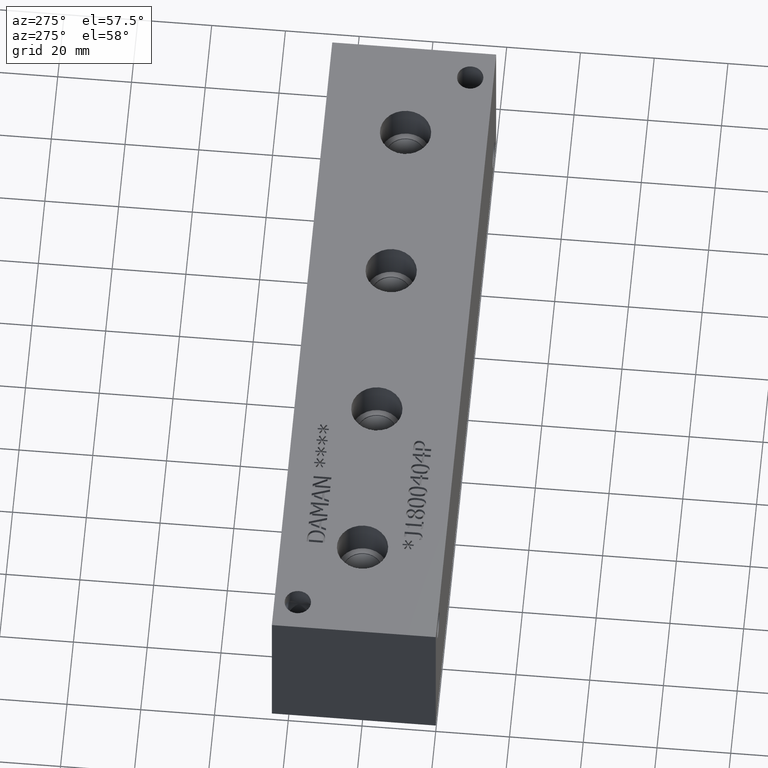
[diagram: clean part render]
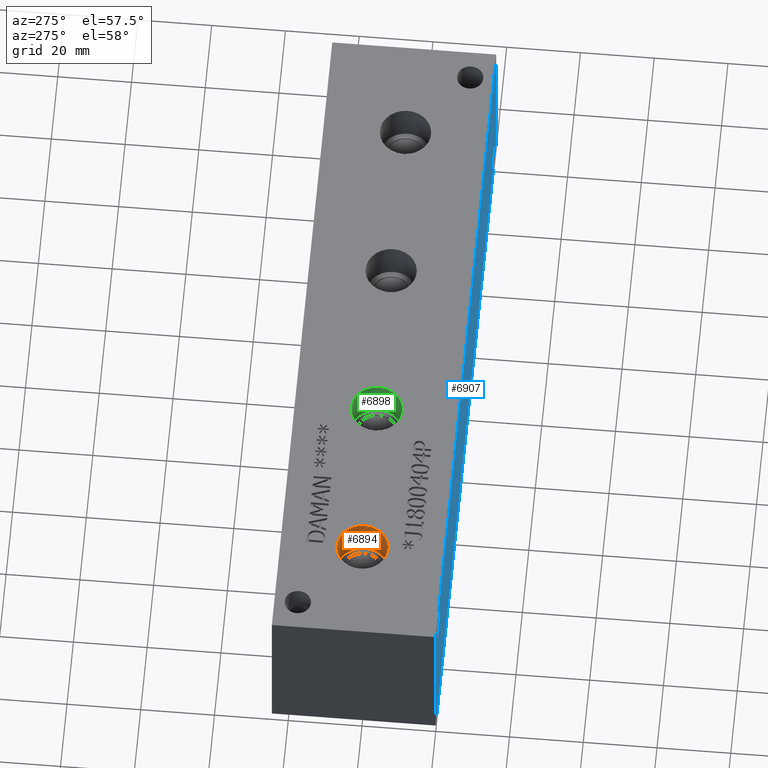
[diagram: same view with three faces highlighted in distinct colors, each labeled with its STEP entity id]
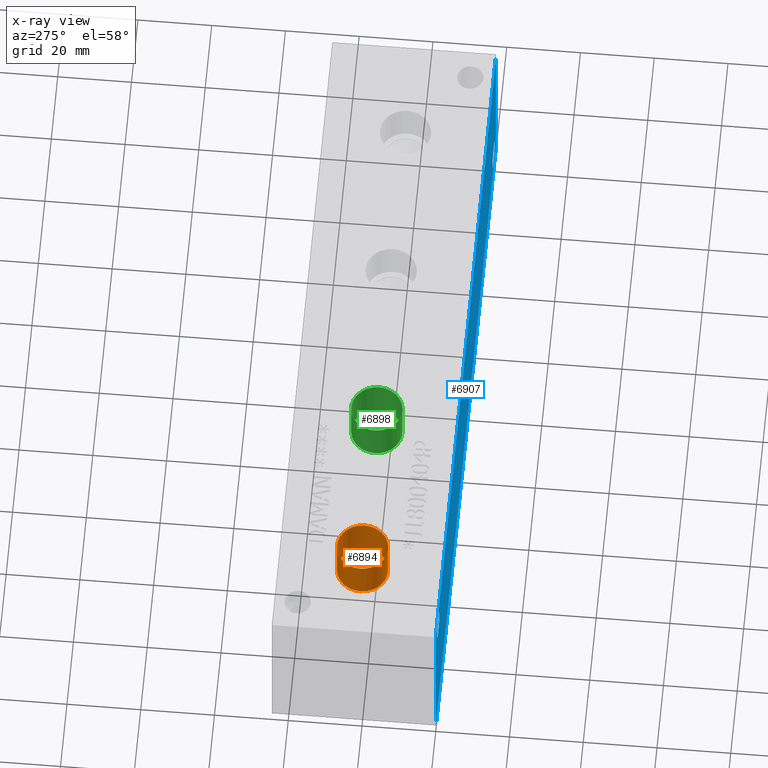
[diagram: x-ray of the same camera — body ghosted, the three highlighted faces saturated]
A machine part, auxiliary view with three faces highlighted in distinct colors.
The next image is the same camera in x-ray (body ghosted, the three faces saturated) — at least one of them is partly hidden behind the body in this view.
Their STEP definitions:

[orange] entity #6894 — the highlighted cylindrical surface (bore or boss wall) has radius 6.9342 mm, axis along (0, 0, 1).
#40=CYLINDRICAL_SURFACE('',#7246,6.9342);
#58=CIRCLE('',#7012,6.9342);
#59=CIRCLE('',#7013,6.9342);
#109=CIRCLE('',#7243,6.9342);
#110=CIRCLE('',#7244,6.9342);
#749=FACE_OUTER_BOUND('',#1140,.T.);
#1140=EDGE_LOOP('',(#6105,#6106,#6107,#6108,#6109,#6110));
#1861=LINE('',#11546,#2570);
#2570=VECTOR('',#8613,6.9342);
#3032=VERTEX_POINT('',#10456);
#3033=VERTEX_POINT('',#10457);
#3355=VERTEX_POINT('',#11539);
#3356=VERTEX_POINT('',#11540);
#3808=EDGE_CURVE('',#3032,#3033,#58,.T.);
#3809=EDGE_CURVE('',#3033,#3032,#59,.T.);
#4284=EDGE_CURVE('',#3355,#3356,#109,.T.);
#4285=EDGE_CURVE('',#3356,#3355,#110,.T.);
#4287=EDGE_CURVE('',#3033,#3356,#1861,.T.);
#6105=ORIENTED_EDGE('',*,*,#3808,.F.);
#6106=ORIENTED_EDGE('',*,*,#3809,.F.);
#6107=ORIENTED_EDGE('',*,*,#4287,.T.);
#6108=ORIENTED_EDGE('',*,*,#4284,.F.);
#6109=ORIENTED_EDGE('',*,*,#4285,.F.);
#6110=ORIENTED_EDGE('',*,*,#4287,.F.);
#6894=ADVANCED_FACE('',(#749),#40,.F.);
#7012=AXIS2_PLACEMENT_3D('',#10458,#7742,#7743);
#7013=AXIS2_PLACEMENT_3D('',#10459,#7744,#7745);
#7243=AXIS2_PLACEMENT_3D('',#11541,#8605,#8606);
#7244=AXIS2_PLACEMENT_3D('',#11542,#8607,#8608);
#7246=AXIS2_PLACEMENT_3D('',#11545,#8611,#8612);
#7742=DIRECTION('center_axis',(0.,0.,-1.));
#7743=DIRECTION('ref_axis',(1.,0.,0.));
#7744=DIRECTION('center_axis',(0.,0.,-1.));
#7745=DIRECTION('ref_axis',(1.,0.,0.));
#8605=DIRECTION('center_axis',(0.,0.,1.));
#8606=DIRECTION('ref_axis',(1.,0.,0.));
#8607=DIRECTION('center_axis',(0.,0.,1.));
#8608=DIRECTION('ref_axis',(1.,0.,0.));
#8611=DIRECTION('center_axis',(0.,0.,1.));
#8612=DIRECTION('ref_axis',(1.,0.,0.));
#8613=DIRECTION('',(0.,0.,-1.));
#10456=CARTESIAN_POINT('',(33.909,22.225,44.45));
#10457=CARTESIAN_POINT('',(20.0406,22.225,44.45));
#10458=CARTESIAN_POINT('Origin',(26.9748,22.225,44.45));
#10459=CARTESIAN_POINT('Origin',(26.9748,22.225,44.45));
#11539=CARTESIAN_POINT('',(33.909,22.225,33.0454));
#11540=CARTESIAN_POINT('',(20.0406,22.225,33.0454));
#11541=CARTESIAN_POINT('Origin',(26.9748,22.225,33.0454));
#11542=CARTESIAN_POINT('Origin',(26.9748,22.225,33.0454));
#11545=CARTESIAN_POINT('Origin',(26.9748,22.225,38.7477));
#11546=CARTESIAN_POINT('',(20.0406,22.225,38.7477));

[blue] entity #6907 — the highlighted planar face has unit normal (0, -1, 0).
#94=CIRCLE('',#7207,3.5687);
#95=CIRCLE('',#7208,3.5687);
#97=CIRCLE('',#7216,3.5687);
#98=CIRCLE('',#7217,3.5687);
#168=FACE_BOUND('',#1158,.T.);
#169=FACE_BOUND('',#1159,.T.);
#413=PLANE('',#7269);
#762=FACE_OUTER_BOUND('',#1157,.T.);
#1157=EDGE_LOOP('',(#6166,#6167,#6168,#6169));
#1158=EDGE_LOOP('',(#6170,#6171));
#1159=EDGE_LOOP('',(#6172,#6173));
#1456=LINE('',#10442,#2165);
#1870=LINE('',#11589,#2579);
#1875=LINE('',#11598,#2584);
#1876=LINE('',#11600,#2585);
#2165=VECTOR('',#7730,10.);
#2579=VECTOR('',#8662,10.);
#2584=VECTOR('',#8671,10.);
#2585=VECTOR('',#8674,10.);
#3024=VERTEX_POINT('',#10440);
#3025=VERTEX_POINT('',#10441);
#3334=VERTEX_POINT('',#11470);
#3335=VERTEX_POINT('',#11471);
#3339=VERTEX_POINT('',#11486);
#3340=VERTEX_POINT('',#11487);
#3371=VERTEX_POINT('',#11587);
#3373=VERTEX_POINT('',#11596);
#3800=EDGE_CURVE('',#3024,#3025,#1456,.T.);
#4249=EDGE_CURVE('',#3334,#3335,#94,.T.);
#4250=EDGE_CURVE('',#3335,#3334,#95,.T.);
#4258=EDGE_CURVE('',#3339,#3340,#97,.T.);
#4259=EDGE_CURVE('',#3340,#3339,#98,.T.);
#4306=EDGE_CURVE('',#3371,#3024,#1870,.T.);
#4311=EDGE_CURVE('',#3373,#3025,#1875,.T.);
#4312=EDGE_CURVE('',#3371,#3373,#1876,.T.);
#6166=ORIENTED_EDGE('',*,*,#4312,.T.);
#6167=ORIENTED_EDGE('',*,*,#4311,.T.);
#6168=ORIENTED_EDGE('',*,*,#3800,.F.);
#6169=ORIENTED_EDGE('',*,*,#4306,.F.);
#6170=ORIENTED_EDGE('',*,*,#4249,.T.);
#6171=ORIENTED_EDGE('',*,*,#4250,.T.);
#6172=ORIENTED_EDGE('',*,*,#4258,.T.);
#6173=ORIENTED_EDGE('',*,*,#4259,.T.);
#6907=ADVANCED_FACE('',(#762,#168,#169),#413,.T.);
#7207=AXIS2_PLACEMENT_3D('',#11472,#8521,#8522);
#7208=AXIS2_PLACEMENT_3D('',#11473,#8523,#8524);
#7216=AXIS2_PLACEMENT_3D('',#11488,#8541,#8542);
#7217=AXIS2_PLACEMENT_3D('',#11489,#8543,#8544);
#7269=AXIS2_PLACEMENT_3D('',#11599,#8672,#8673);
#7730=DIRECTION('',(1.,0.,0.));
#8521=DIRECTION('center_axis',(0.,1.,0.));
#8522=DIRECTION('ref_axis',(1.,0.,0.));
#8523=DIRECTION('center_axis',(0.,1.,0.));
#8524=DIRECTION('ref_axis',(1.,0.,0.));
#8541=DIRECTION('center_axis',(0.,1.,0.));
#8542=DIRECTION('ref_axis',(1.,0.,0.));
#8543=DIRECTION('center_axis',(0.,1.,0.));
#8544=DIRECTION('ref_axis',(1.,0.,0.));
#8662=DIRECTION('',(0.,0.,1.));
#8671=DIRECTION('',(0.,0.,1.));
#8672=DIRECTION('center_axis',(0.,-1.,0.));
#8673=DIRECTION('ref_axis',(1.,0.,0.));
#8674=DIRECTION('',(1.,0.,0.));
#10440=CARTESIAN_POINT('',(0.,0.,44.45));
#10441=CARTESIAN_POINT('',(187.325,0.,44.45));
#10442=CARTESIAN_POINT('',(0.,0.,44.45));
#11470=CARTESIAN_POINT('',(11.4935,0.,38.1));
#11471=CARTESIAN_POINT('',(4.3561,0.,38.1));
#11472=CARTESIAN_POINT('Origin',(7.9248,0.,38.1));
#11473=CARTESIAN_POINT('Origin',(7.9248,0.,38.1));
#11486=CARTESIAN_POINT('',(182.9435,0.,6.35));
#11487=CARTESIAN_POINT('',(175.8061,0.,6.35));
#11488=CARTESIAN_POINT('Origin',(179.3748,0.,6.35));
#11489=CARTESIAN_POINT('Origin',(179.3748,0.,6.35));
#11587=CARTESIAN_POINT('',(0.,0.,0.));
#11589=CARTESIAN_POINT('',(0.,0.,0.));
#11596=CARTESIAN_POINT('',(187.325,0.,0.));
#11598=CARTESIAN_POINT('',(187.325,0.,0.));
#11599=CARTESIAN_POINT('Origin',(0.,0.,0.));
#11600=CARTESIAN_POINT('',(0.,0.,0.));

[green] entity #6898 — the highlighted cylindrical surface (bore or boss wall) has radius 6.9342 mm, axis along (0, 0, 1).
#42=CYLINDRICAL_SURFACE('',#7255,6.9342);
#56=CIRCLE('',#7010,6.9342);
#57=CIRCLE('',#7011,6.9342);
#114=CIRCLE('',#7252,6.9342);
#115=CIRCLE('',#7253,6.9342);
#753=FACE_OUTER_BOUND('',#1145,.T.);
#1145=EDGE_LOOP('',(#6123,#6124,#6125,#6126,#6127,#6128));
#1864=LINE('',#11564,#2573);
#2573=VECTOR('',#8634,6.9342);
#3030=VERTEX_POINT('',#10452);
#3031=VERTEX_POINT('',#10453);
#3361=VERTEX_POINT('',#11557);
#3362=VERTEX_POINT('',#11558);
#3806=EDGE_CURVE('',#3030,#3031,#56,.T.);
#3807=EDGE_CURVE('',#3031,#3030,#57,.T.);
#4292=EDGE_CURVE('',#3361,#3362,#114,.T.);
#4293=EDGE_CURVE('',#3362,#3361,#115,.T.);
#4295=EDGE_CURVE('',#3031,#3362,#1864,.T.);
#6123=ORIENTED_EDGE('',*,*,#3806,.F.);
#6124=ORIENTED_EDGE('',*,*,#3807,.F.);
#6125=ORIENTED_EDGE('',*,*,#4295,.T.);
#6126=ORIENTED_EDGE('',*,*,#4292,.F.);
#6127=ORIENTED_EDGE('',*,*,#4293,.F.);
#6128=ORIENTED_EDGE('',*,*,#4295,.F.);
#6898=ADVANCED_FACE('',(#753),#42,.F.);
#7010=AXIS2_PLACEMENT_3D('',#10454,#7738,#7739);
#7011=AXIS2_PLACEMENT_3D('',#10455,#7740,#7741);
#7252=AXIS2_PLACEMENT_3D('',#11559,#8626,#8627);
#7253=AXIS2_PLACEMENT_3D('',#11560,#8628,#8629);
#7255=AXIS2_PLACEMENT_3D('',#11563,#8632,#8633);
#7738=DIRECTION('center_axis',(0.,0.,-1.));
#7739=DIRECTION('ref_axis',(1.,0.,0.));
#7740=DIRECTION('center_axis',(0.,0.,-1.));
#7741=DIRECTION('ref_axis',(1.,0.,0.));
#8626=DIRECTION('center_axis',(0.,0.,1.));
#8627=DIRECTION('ref_axis',(1.,0.,0.));
#8628=DIRECTION('center_axis',(0.,0.,1.));
#8629=DIRECTION('ref_axis',(1.,0.,0.));
#8632=DIRECTION('center_axis',(0.,0.,1.));
#8633=DIRECTION('ref_axis',(1.,0.,0.));
#8634=DIRECTION('',(0.,0.,-1.));
#10452=CARTESIAN_POINT('',(78.359,22.225,44.45));
#10453=CARTESIAN_POINT('',(64.4906,22.225,44.45));
#10454=CARTESIAN_POINT('Origin',(71.4248,22.225,44.45));
#10455=CARTESIAN_POINT('Origin',(71.4248,22.225,44.45));
#11557=CARTESIAN_POINT('',(78.359,22.225,33.0454));
#11558=CARTESIAN_POINT('',(64.4906,22.225,33.0454));
#11559=CARTESIAN_POINT('Origin',(71.4248,22.225,33.0454));
#11560=CARTESIAN_POINT('Origin',(71.4248,22.225,33.0454));
#11563=CARTESIAN_POINT('Origin',(71.4248,22.225,38.7477));
#11564=CARTESIAN_POINT('',(64.4906,22.225,38.7477));